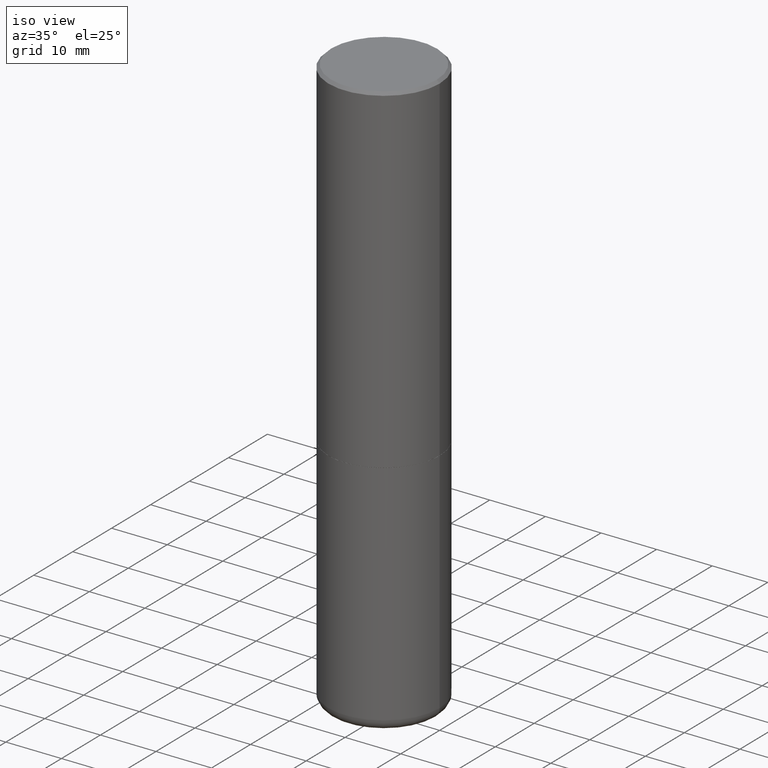
[diagram: clean part render]
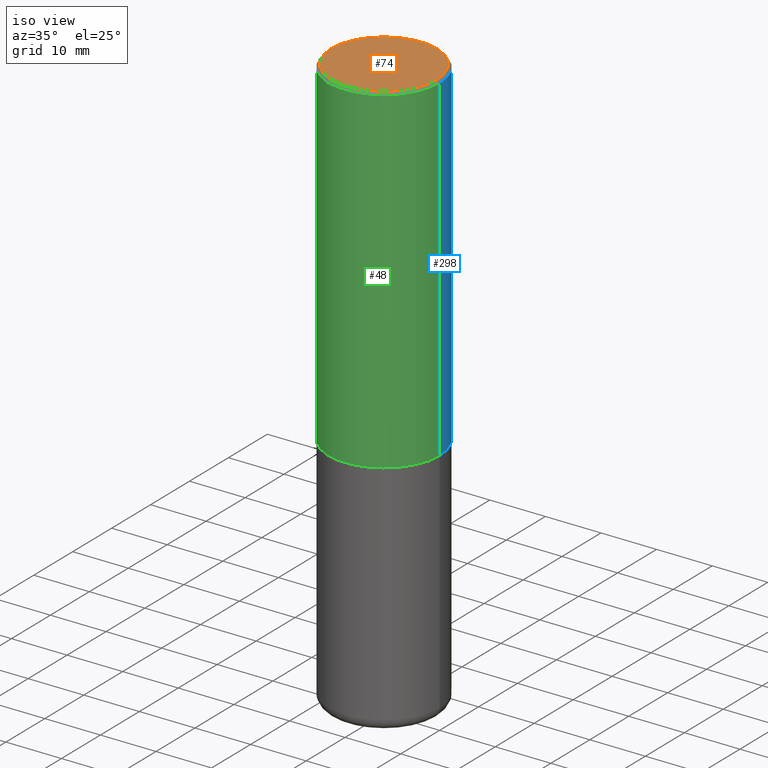
[diagram: same view with three faces highlighted in distinct colors, each labeled with its STEP entity id]
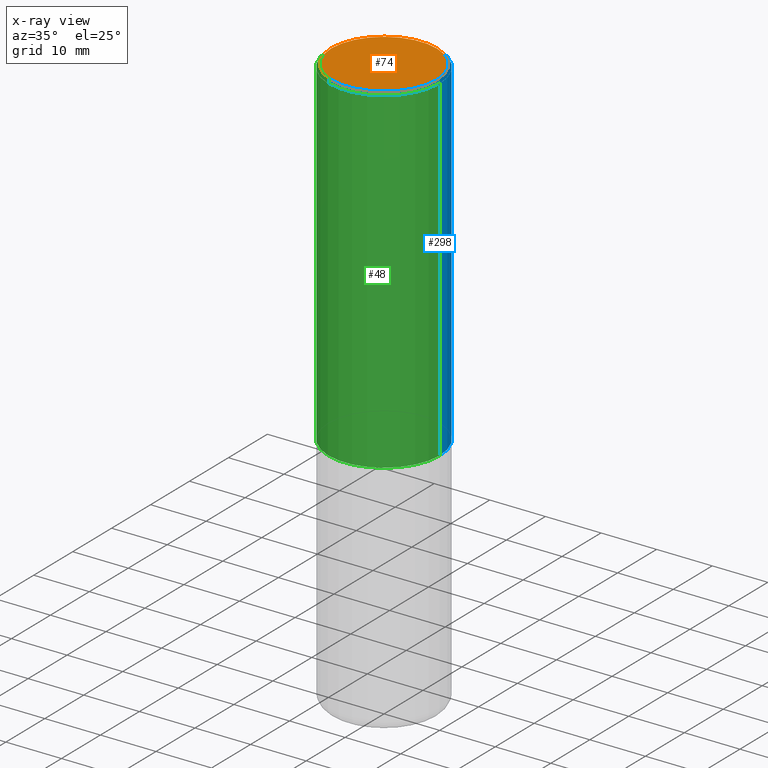
[diagram: x-ray of the same camera — body ghosted, the three highlighted faces saturated]
A machine part, iso view with three faces highlighted in distinct colors.
The next image is the same camera in x-ray (body ghosted, the three faces saturated) — at least one of them is partly hidden behind the body in this view.
Their STEP definitions:

[orange] entity #74 — the highlighted planar face has unit normal (0, -0, -1).
#16 = CARTESIAN_POINT ( 'NONE',  ( 0.3736999999999997546, -2.667287895133366781E-15, 2.219626494852398384E-16 ) ) ;
#35 = AXIS2_PLACEMENT_3D ( 'NONE', #299, #58, #180 ) ;
#58 = DIRECTION ( 'NONE',  ( -2.445468806185136597E-29, 3.491481338843145583E-15, 1.000000000000000000 ) ) ;
#67 = PLANE ( 'NONE',  #256 ) ;
#72 = CARTESIAN_POINT ( 'NONE',  ( -0.3736999999999997546, 2.644447966039789058E-15, 2.219626494852030085E-16 ) ) ;
#74 = ADVANCED_FACE ( 'NONE', ( #159 ), #67, .F. ) ;
#127 = DIRECTION ( 'NONE',  ( -1.000000000000000000, 6.982962677686265922E-15, -4.876176775795935793E-29 ) ) ;
#152 = ORIENTED_EDGE ( 'NONE', *, *, #325, .T. ) ;
#159 = FACE_OUTER_BOUND ( 'NONE', #178, .T. ) ;
#178 = EDGE_LOOP ( 'NONE', ( #152, #200 ) ) ;
#180 = DIRECTION ( 'NONE',  ( 1.000000000000000000, -6.982962677686266711E-15, 4.877734241229879050E-29 ) ) ;
#200 = ORIENTED_EDGE ( 'NONE', *, *, #280, .T. ) ;
#218 = VERTEX_POINT ( 'NONE', #72 ) ;
#248 = CARTESIAN_POINT ( 'NONE',  ( -5.428027354543142984E-45, 7.749784485978325769E-31, 2.219626494852213988E-16 ) ) ;
#256 = AXIS2_PLACEMENT_3D ( 'NONE', #314, #418, #127 ) ;
#262 = CIRCLE ( 'NONE', #35, 0.3736999999999997546 ) ;
#280 = EDGE_CURVE ( 'NONE', #313, #218, #380, .T. ) ;
#294 = AXIS2_PLACEMENT_3D ( 'NONE', #248, #402, #366 ) ;
#299 = CARTESIAN_POINT ( 'NONE',  ( -5.428027354543142984E-45, 7.749784485978325769E-31, 2.219626494852213988E-16 ) ) ;
#313 = VERTEX_POINT ( 'NONE', #16 ) ;
#314 = CARTESIAN_POINT ( 'NONE',  ( 2.609533152651355831E-15, 0.3736999999999997546, -1.193785251583072147E-15 ) ) ;
#325 = EDGE_CURVE ( 'NONE', #218, #313, #262, .T. ) ;
#366 = DIRECTION ( 'NONE',  ( 1.000000000000000000, -6.982962677686266711E-15, 4.877734241229879050E-29 ) ) ;
#380 = CIRCLE ( 'NONE', #294, 0.3736999999999997546 ) ;
#402 = DIRECTION ( 'NONE',  ( -2.445468806185136597E-29, 3.491481338843145583E-15, 1.000000000000000000 ) ) ;
#418 = DIRECTION ( 'NONE',  ( 2.438088387897960049E-29, -3.491481338843145188E-15, -1.000000000000000000 ) ) ;

[blue] entity #298 — the highlighted cylindrical surface (partial cylindrical patch) has radius 10 mm, axis along (-0, 0, 1).
#5 = CIRCLE ( 'NONE', #304, 0.3937000000000000499 ) ;
#14 = CARTESIAN_POINT ( 'NONE',  ( 0.3937000000000002720, -1.113084250823194063E-14, -2.400600000000000289 ) ) ;
#30 = DIRECTION ( 'NONE',  ( -2.445468806185136597E-29, 3.491481338843145583E-15, 1.000000000000000000 ) ) ;
#34 = CARTESIAN_POINT ( 'NONE',  ( 5.870592416128038746E-29, -8.381650102026855834E-15, -2.400600000000000289 ) ) ;
#37 = CARTESIAN_POINT ( 'NONE',  ( 0.000000000000000000, 0.000000000000000000, 0.000000000000000000 ) ) ;
#39 = DIRECTION ( 'NONE',  ( 1.000000000000000000, -6.982962677686265922E-15, 0.000000000000000000 ) ) ;
#40 = CARTESIAN_POINT ( 'NONE',  ( 0.3937000000000000499, -2.770807688499515734E-15, -0.02000000000000008715 ) ) ;
#42 = VERTEX_POINT ( 'NONE', #106 ) ;
#51 = LINE ( 'NONE', #179, #141 ) ;
#63 = CARTESIAN_POINT ( 'NONE',  ( -0.3937000000000003830, -1.428333113714341032E-15, -2.400600000000000289 ) ) ;
#88 = FACE_OUTER_BOUND ( 'NONE', #374, .T. ) ;
#89 = ORIENTED_EDGE ( 'NONE', *, *, #383, .F. ) ;
#101 = DIRECTION ( 'NONE',  ( -2.445468806185136597E-29, 3.491481338843145583E-15, 1.000000000000000000 ) ) ;
#106 = CARTESIAN_POINT ( 'NONE',  ( -0.3937000000000000499, 2.679362779428219918E-15, -0.02000000000000008715 ) ) ;
#110 = VECTOR ( 'NONE', #194, 39.37007874015748143 ) ;
#124 = AXIS2_PLACEMENT_3D ( 'NONE', #37, #163, #144 ) ;
#141 = VECTOR ( 'NONE', #241, 39.37007874015748143 ) ;
#144 = DIRECTION ( 'NONE',  ( 1.000000000000000000, -6.982962677686266711E-15, 4.876176775795935793E-29 ) ) ;
#163 = DIRECTION ( 'NONE',  ( -2.445468806185136597E-29, 3.491481338843145583E-15, 1.000000000000000000 ) ) ;
#179 = CARTESIAN_POINT ( 'NONE',  ( -0.3937000000000001609, 2.797406750687515575E-15, -1.936584745033357296E-29 ) ) ;
#194 = DIRECTION ( 'NONE',  ( -2.445468806185136877E-29, 3.491481338843145188E-15, 1.000000000000000000 ) ) ;
#210 = CYLINDRICAL_SURFACE ( 'NONE', #124, 0.3937000000000001609 ) ;
#213 = EDGE_CURVE ( 'NONE', #357, #42, #5, .T. ) ;
#241 = DIRECTION ( 'NONE',  ( -2.445468806185136877E-29, 3.491481338843145188E-15, 1.000000000000000000 ) ) ;
#251 = ORIENTED_EDGE ( 'NONE', *, *, #291, .T. ) ;
#266 = CARTESIAN_POINT ( 'NONE',  ( 4.890937612370294178E-31, -6.982962677686321191E-17, -0.02000000000000008715 ) ) ;
#286 = ORIENTED_EDGE ( 'NONE', *, *, #213, .F. ) ;
#291 = EDGE_CURVE ( 'NONE', #350, #42, #51, .T. ) ;
#298 = ADVANCED_FACE ( 'NONE', ( #88 ), #210, .T. ) ;
#304 = AXIS2_PLACEMENT_3D ( 'NONE', #266, #101, #360 ) ;
#319 = ORIENTED_EDGE ( 'NONE', *, *, #390, .T. ) ;
#324 = AXIS2_PLACEMENT_3D ( 'NONE', #34, #30, #39 ) ;
#340 = VERTEX_POINT ( 'NONE', #14 ) ;
#349 = CIRCLE ( 'NONE', #324, 0.3937000000000002720 ) ;
#350 = VERTEX_POINT ( 'NONE', #63 ) ;
#357 = VERTEX_POINT ( 'NONE', #40 ) ;
#360 = DIRECTION ( 'NONE',  ( 1.000000000000000000, -6.982962677686265922E-15, 0.000000000000000000 ) ) ;
#364 = CARTESIAN_POINT ( 'NONE',  ( 0.3937000000000001609, -2.749192406205084400E-15, 1.919750796630860732E-29 ) ) ;
#374 = EDGE_LOOP ( 'NONE', ( #319, #251, #286, #89 ) ) ;
#383 = EDGE_CURVE ( 'NONE', #340, #357, #405, .T. ) ;
#390 = EDGE_CURVE ( 'NONE', #340, #350, #349, .T. ) ;
#405 = LINE ( 'NONE', #364, #110 ) ;

[green] entity #48 — the highlighted cylindrical surface (partial cylindrical patch) has radius 10 mm, axis along (-0, 0, 1).
#4 = CIRCLE ( 'NONE', #60, 0.3937000000000000499 ) ;
#12 = CARTESIAN_POINT ( 'NONE',  ( 0.000000000000000000, 0.000000000000000000, 0.000000000000000000 ) ) ;
#14 = CARTESIAN_POINT ( 'NONE',  ( 0.3937000000000002720, -1.113084250823194063E-14, -2.400600000000000289 ) ) ;
#40 = CARTESIAN_POINT ( 'NONE',  ( 0.3937000000000000499, -2.770807688499515734E-15, -0.02000000000000008715 ) ) ;
#42 = VERTEX_POINT ( 'NONE', #106 ) ;
#48 = ADVANCED_FACE ( 'NONE', ( #242 ), #399, .T. ) ;
#51 = LINE ( 'NONE', #179, #141 ) ;
#54 = EDGE_CURVE ( 'NONE', #42, #357, #4, .T. ) ;
#60 = AXIS2_PLACEMENT_3D ( 'NONE', #164, #172, #209 ) ;
#63 = CARTESIAN_POINT ( 'NONE',  ( -0.3937000000000003830, -1.428333113714341032E-15, -2.400600000000000289 ) ) ;
#78 = DIRECTION ( 'NONE',  ( -2.445468806185136597E-29, 3.491481338843145583E-15, 1.000000000000000000 ) ) ;
#85 = AXIS2_PLACEMENT_3D ( 'NONE', #12, #269, #273 ) ;
#106 = CARTESIAN_POINT ( 'NONE',  ( -0.3937000000000000499, 2.679362779428219918E-15, -0.02000000000000008715 ) ) ;
#110 = VECTOR ( 'NONE', #194, 39.37007874015748143 ) ;
#141 = VECTOR ( 'NONE', #241, 39.37007874015748143 ) ;
#147 = ORIENTED_EDGE ( 'NONE', *, *, #54, .F. ) ;
#164 = CARTESIAN_POINT ( 'NONE',  ( 4.890937612370294178E-31, -6.982962677686321191E-17, -0.02000000000000008715 ) ) ;
#169 = EDGE_CURVE ( 'NONE', #350, #340, #187, .T. ) ;
#172 = DIRECTION ( 'NONE',  ( -2.445468806185136597E-29, 3.491481338843145583E-15, 1.000000000000000000 ) ) ;
#179 = CARTESIAN_POINT ( 'NONE',  ( -0.3937000000000001609, 2.797406750687515575E-15, -1.936584745033357296E-29 ) ) ;
#187 = CIRCLE ( 'NONE', #331, 0.3937000000000002720 ) ;
#194 = DIRECTION ( 'NONE',  ( -2.445468806185136877E-29, 3.491481338843145188E-15, 1.000000000000000000 ) ) ;
#209 = DIRECTION ( 'NONE',  ( 1.000000000000000000, -6.982962677686265922E-15, 0.000000000000000000 ) ) ;
#229 = ORIENTED_EDGE ( 'NONE', *, *, #291, .F. ) ;
#241 = DIRECTION ( 'NONE',  ( -2.445468806185136877E-29, 3.491481338843145188E-15, 1.000000000000000000 ) ) ;
#242 = FACE_OUTER_BOUND ( 'NONE', #316, .T. ) ;
#263 = CARTESIAN_POINT ( 'NONE',  ( 5.870592416128038746E-29, -8.381650102026855834E-15, -2.400600000000000289 ) ) ;
#269 = DIRECTION ( 'NONE',  ( -2.445468806185136597E-29, 3.491481338843145583E-15, 1.000000000000000000 ) ) ;
#273 = DIRECTION ( 'NONE',  ( 1.000000000000000000, -6.982962677686266711E-15, 4.876176775795935793E-29 ) ) ;
#291 = EDGE_CURVE ( 'NONE', #350, #42, #51, .T. ) ;
#306 = ORIENTED_EDGE ( 'NONE', *, *, #169, .T. ) ;
#316 = EDGE_LOOP ( 'NONE', ( #229, #306, #401, #147 ) ) ;
#331 = AXIS2_PLACEMENT_3D ( 'NONE', #263, #78, #391 ) ;
#340 = VERTEX_POINT ( 'NONE', #14 ) ;
#350 = VERTEX_POINT ( 'NONE', #63 ) ;
#357 = VERTEX_POINT ( 'NONE', #40 ) ;
#364 = CARTESIAN_POINT ( 'NONE',  ( 0.3937000000000001609, -2.749192406205084400E-15, 1.919750796630860732E-29 ) ) ;
#383 = EDGE_CURVE ( 'NONE', #340, #357, #405, .T. ) ;
#391 = DIRECTION ( 'NONE',  ( 1.000000000000000000, -6.982962677686265922E-15, 0.000000000000000000 ) ) ;
#399 = CYLINDRICAL_SURFACE ( 'NONE', #85, 0.3937000000000001609 ) ;
#401 = ORIENTED_EDGE ( 'NONE', *, *, #383, .T. ) ;
#405 = LINE ( 'NONE', #364, #110 ) ;